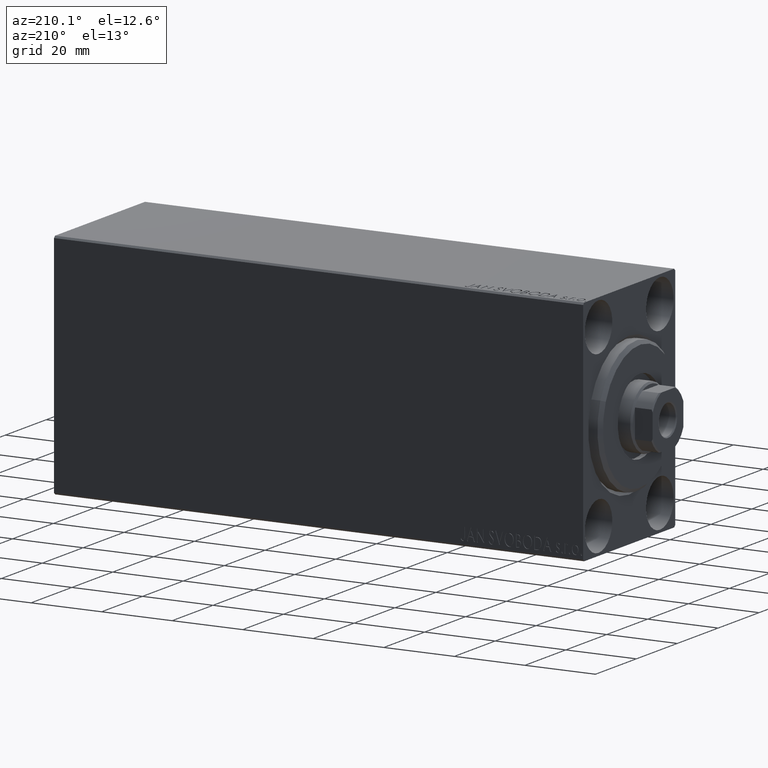
[diagram: clean part render]
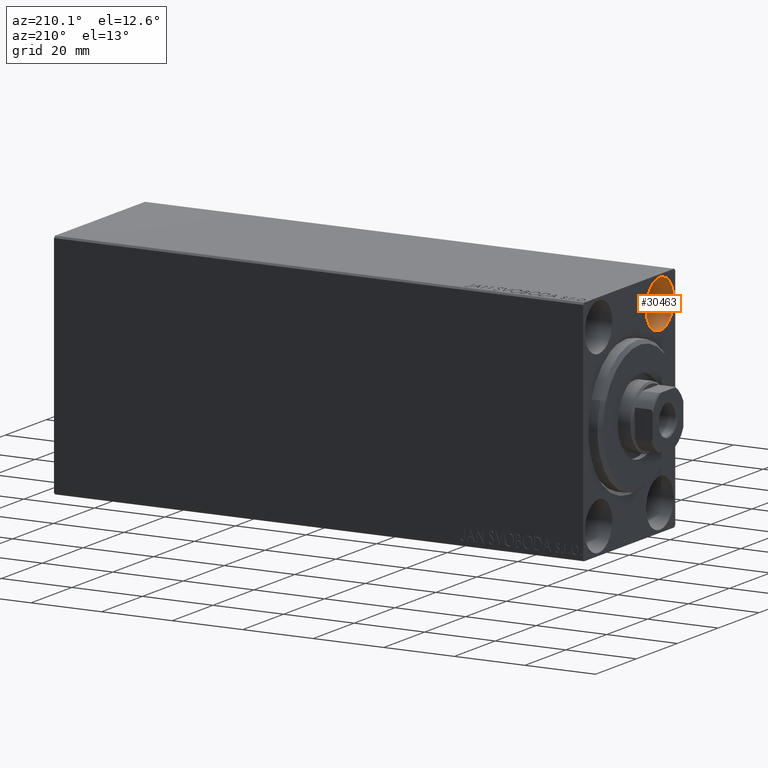
[diagram: same view with one face highlighted and labeled with its STEP entity id]
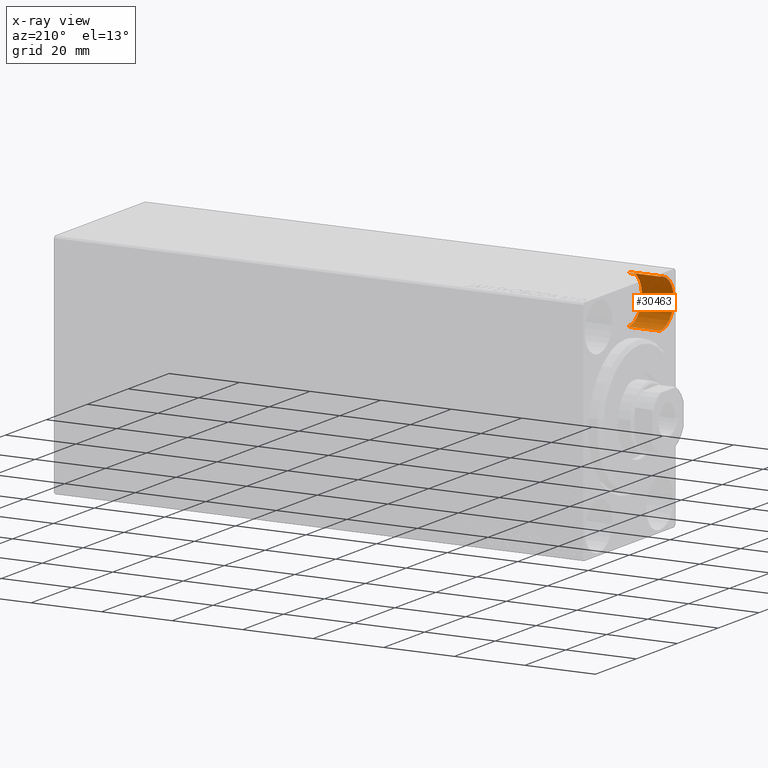
[diagram: x-ray of the same camera — body ghosted, the highlighted face saturated]
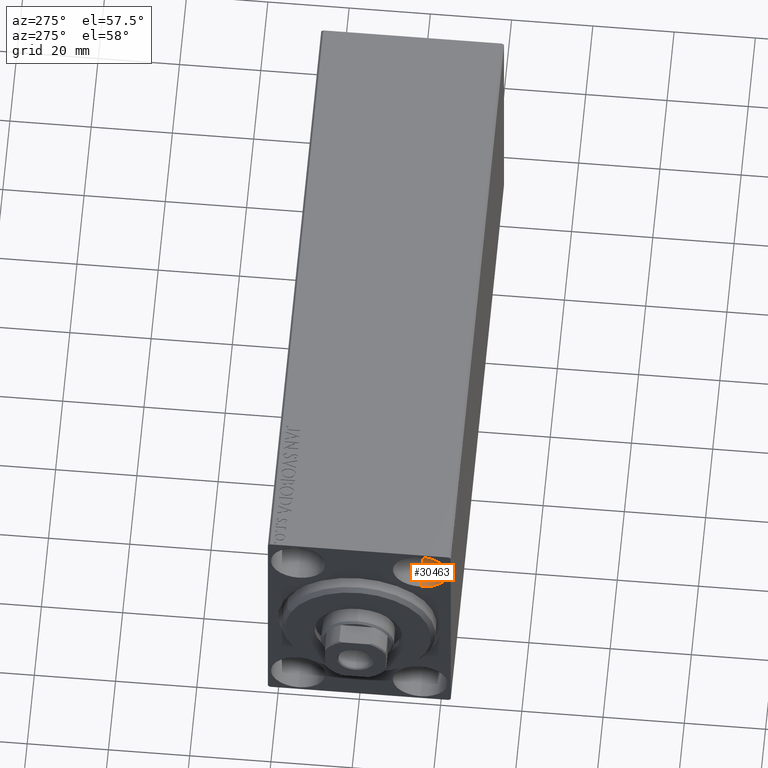
[diagram: same view with one face highlighted and labeled with its STEP entity id]
A machine part, auxiliary view. The second image highlights one B-rep face of the part: STEP entity #30463.
The next image is the same camera in x-ray: the body ghosted, the highlighted face saturated — about 0% of this face is hidden behind the body in this view.
A second angle (auxiliary view) of the same face is appended — the face is thin or edge-on in the first view.
In plain terms, the highlighted cylindrical surface (edge-blend (fillet) strip) has radius 6.75 mm, axis along (-1, -0, -0).
Its self-contained STEP definition (entity closure, byte-faithful):
#524 = VERTEX_POINT ( 'NONE', #32213 ) ;
#2180 = DIRECTION ( 'NONE',  ( -1.000000000000000000, -0.000000000000000000, -0.000000000000000000 ) ) ;
#2182 = ORIENTED_EDGE ( 'NONE', *, *, #32638, .F. ) ;
#4048 = CYLINDRICAL_SURFACE ( 'NONE', #43932, 6.749999999999999112 ) ;
#5086 = ORIENTED_EDGE ( 'NONE', *, *, #31174, .F. ) ;
#6891 = CARTESIAN_POINT ( 'NONE',  ( 0.000000000000000000, -14.99999999999999645, 25.00000000000000000 ) ) ;
#7056 = EDGE_CURVE ( 'NONE', #524, #43816, #21125, .T. ) ;
#7197 = VERTEX_POINT ( 'NONE', #12217 ) ;
#10494 = FACE_OUTER_BOUND ( 'NONE', #32044, .T. ) ;
#11259 = CIRCLE ( 'NONE', #14784, 6.749999999999999112 ) ;
#12217 = CARTESIAN_POINT ( 'NONE',  ( 9.000000000000000000, -14.99999999999999645, 31.75000000000000000 ) ) ;
#14784 = AXIS2_PLACEMENT_3D ( 'NONE', #27065, #33550, #33329 ) ;
#16177 = LINE ( 'NONE', #35767, #29733 ) ;
#20457 = DIRECTION ( 'NONE',  ( -1.000000000000000000, 0.000000000000000000, 0.000000000000000000 ) ) ;
#20640 = CIRCLE ( 'NONE', #24160, 6.749999999999999112 ) ;
#21125 = LINE ( 'NONE', #37819, #22323 ) ;
#22323 = VECTOR ( 'NONE', #37596, 1000.000000000000000 ) ;
#23613 = DIRECTION ( 'NONE',  ( 0.000000000000000000, 0.000000000000000000, 1.000000000000000000 ) ) ;
#23834 = CARTESIAN_POINT ( 'NONE',  ( 9.000000000000000000, -14.99999999999999645, 25.00000000000000000 ) ) ;
#24160 = AXIS2_PLACEMENT_3D ( 'NONE', #6891, #20457, #31126 ) ;
#25137 = ORIENTED_EDGE ( 'NONE', *, *, #7056, .T. ) ;
#27065 = CARTESIAN_POINT ( 'NONE',  ( 9.000000000000000000, -14.99999999999999645, 25.00000000000000000 ) ) ;
#29733 = VECTOR ( 'NONE', #2180, 1000.000000000000000 ) ;
#30463 = ADVANCED_FACE ( 'NONE', ( #10494 ), #4048, .F. ) ;
#31126 = DIRECTION ( 'NONE',  ( 0.000000000000000000, 0.000000000000000000, 1.000000000000000000 ) ) ;
#31174 = EDGE_CURVE ( 'NONE', #524, #7197, #11259, .T. ) ;
#31179 = DIRECTION ( 'NONE',  ( -1.000000000000000000, -0.000000000000000000, -0.000000000000000000 ) ) ;
#32044 = EDGE_LOOP ( 'NONE', ( #5086, #25137, #40584, #2182 ) ) ;
#32213 = CARTESIAN_POINT ( 'NONE',  ( 9.000000000000000000, -14.99999999999999645, 18.25000000000000355 ) ) ;
#32638 = EDGE_CURVE ( 'NONE', #7197, #35386, #16177, .T. ) ;
#33329 = DIRECTION ( 'NONE',  ( 0.000000000000000000, 0.000000000000000000, 1.000000000000000000 ) ) ;
#33550 = DIRECTION ( 'NONE',  ( -1.000000000000000000, 0.000000000000000000, 0.000000000000000000 ) ) ;
#35386 = VERTEX_POINT ( 'NONE', #41622 ) ;
#35767 = CARTESIAN_POINT ( 'NONE',  ( 9.000000000000000000, -14.99999999999999645, 31.75000000000000000 ) ) ;
#37495 = EDGE_CURVE ( 'NONE', #43816, #35386, #20640, .T. ) ;
#37596 = DIRECTION ( 'NONE',  ( -1.000000000000000000, -0.000000000000000000, -0.000000000000000000 ) ) ;
#37819 = CARTESIAN_POINT ( 'NONE',  ( 9.000000000000000000, -14.99999999999999645, 18.25000000000000355 ) ) ;
#40584 = ORIENTED_EDGE ( 'NONE', *, *, #37495, .T. ) ;
#41622 = CARTESIAN_POINT ( 'NONE',  ( 0.000000000000000000, -14.99999999999999645, 31.75000000000000000 ) ) ;
#43479 = CARTESIAN_POINT ( 'NONE',  ( 0.000000000000000000, -14.99999999999999645, 18.25000000000000355 ) ) ;
#43816 = VERTEX_POINT ( 'NONE', #43479 ) ;
#43932 = AXIS2_PLACEMENT_3D ( 'NONE', #23834, #31179, #23613 ) ;